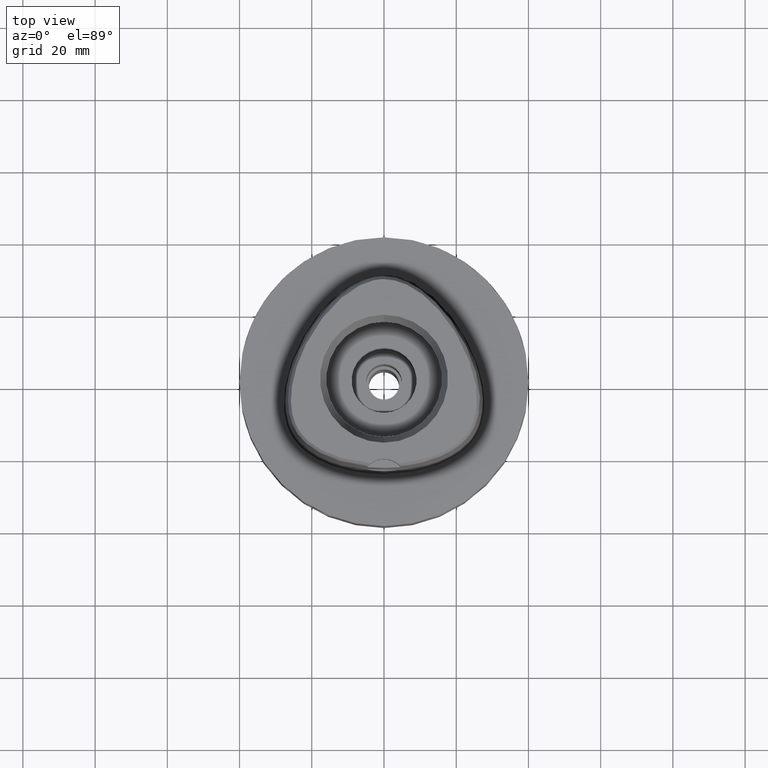
[diagram: clean part render]
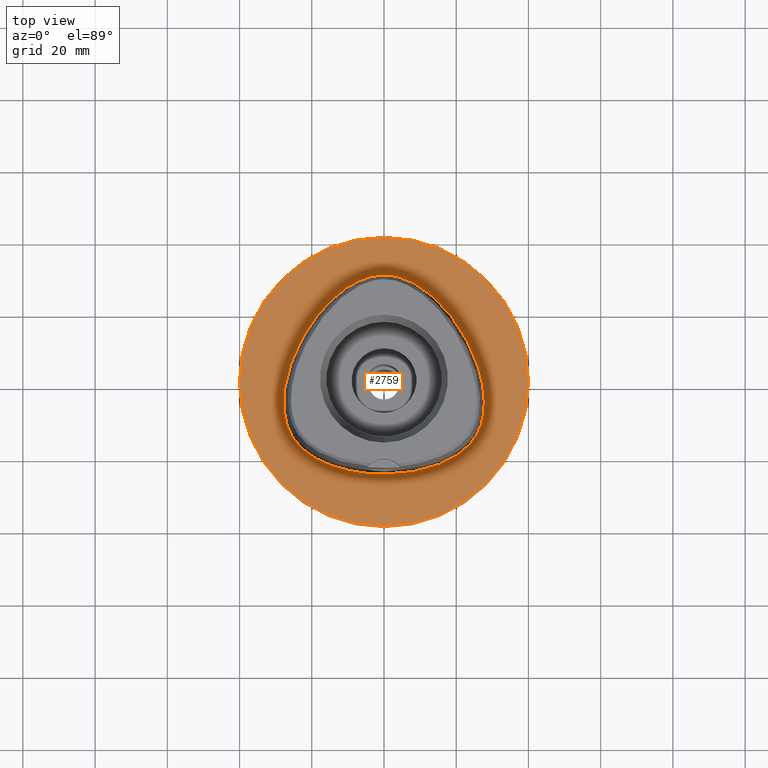
[diagram: same view with one face highlighted and labeled with its STEP entity id]
A machine part, top view. The second image highlights one B-rep face of the part: STEP entity #2759.
In plain terms, the highlighted planar face has unit normal (0, 0, -1).
Its self-contained STEP definition (entity closure, byte-faithful):
#54 = ORIENTED_EDGE ( 'NONE', *, *, #3718, .F. ) ;
#59 = DIRECTION ( 'NONE',  ( 0.0000000000000000000, 0.0000000000000000000, -1.000000000000000000 ) ) ;
#277 = AXIS2_PLACEMENT_3D ( 'NONE', #4810, #2851, #2103 ) ;
#292 = CARTESIAN_POINT ( 'NONE',  ( 11.74025984165630021, -24.13566401404884942, 2.004477007663298116E-06 ) ) ;
#332 = CARTESIAN_POINT ( 'NONE',  ( -21.42129056939050358, -19.59889645245617373, 1.596118149108094464E-06 ) ) ;
#353 = AXIS2_PLACEMENT_3D ( 'NONE', #4296, #4761, #3962 ) ;
#361 = CARTESIAN_POINT ( 'NONE',  ( -25.63812386396930876, -14.80217771438690910, 1.596118149108094464E-06 ) ) ;
#466 = CARTESIAN_POINT ( 'NONE',  ( -1.500612728353999969E-11, -25.57499999999999929, 7.690144817236999257E-14 ) ) ;
#470 = CARTESIAN_POINT ( 'NONE',  ( 0.0000000000000000000, -40.00000000000000000, 0.0000000000000000000 ) ) ;
#533 = VERTEX_POINT ( 'NONE', #466 ) ;
#637 = CARTESIAN_POINT ( 'NONE',  ( -18.55019647169920205, -21.45394527734240597, 1.596118149108094464E-06 ) ) ;
#650 = CARTESIAN_POINT ( 'NONE',  ( 27.68378748849034920, -8.751933587425231309, 2.004477007663298116E-06 ) ) ;
#815 = FACE_BOUND ( 'NONE', #4662, .T. ) ;
#931 = CIRCLE ( 'NONE', #277, 40.00000000000000000 ) ;
#960 = EDGE_CURVE ( 'NONE', #3310, #533, #4248, .T. ) ;
#976 = CARTESIAN_POINT ( 'NONE',  ( -9.304563385736750902, 26.79191402835184022, 1.596118149108094464E-06 ) ) ;
#1042 = CARTESIAN_POINT ( 'NONE',  ( 22.33885461409847650, 12.89734372483531999, 2.004477007663298116E-06 ) ) ;
#1095 = CARTESIAN_POINT ( 'NONE',  ( 15.29776364460782467, -22.96525385946577558, 2.004477007663298116E-06 ) ) ;
#1165 = CARTESIAN_POINT ( 'NONE',  ( -27.10051713518205929, -11.41106444215656701, 1.596118149108094464E-06 ) ) ;
#1406 = CARTESIAN_POINT ( 'NONE',  ( 6.691850456937086911, -25.24546870020594014, 2.004477007663298116E-06 ) ) ;
#1435 = CARTESIAN_POINT ( 'NONE',  ( 27.10051712533027413, -11.41106443934843284, 2.004477007663298116E-06 ) ) ;
#1489 = VERTEX_POINT ( 'NONE', #470 ) ;
#1490 = CARTESIAN_POINT ( 'NONE',  ( 3.650762729678999847E-11, 29.57499999998999840, 7.053616949784998820E-14 ) ) ;
#1515 = CARTESIAN_POINT ( 'NONE',  ( 21.42129056319168612, -19.59889644429075872, 2.004477007663298116E-06 ) ) ;
#1529 = CARTESIAN_POINT ( 'NONE',  ( -24.77458490272899283, -16.12173825757710333, 1.596118149108094464E-06 ) ) ;
#1741 = CARTESIAN_POINT ( 'NONE',  ( 0.0000000000000000000, 1.292614696500000017E-14, 0.0000000000000000000 ) ) ;
#1745 = CARTESIAN_POINT ( 'NONE',  ( 3.650762729678999847E-11, 29.57499999998999840, 7.053616949784998820E-14 ) ) ;
#1809 = CARTESIAN_POINT ( 'NONE',  ( 23.43253025136742806, -17.76420406655662276, 2.004477007663298116E-06 ) ) ;
#1822 = CARTESIAN_POINT ( 'NONE',  ( -27.53737507907375814, -1.765625006037526701, 1.596118149108094464E-06 ) ) ;
#1833 = CARTESIAN_POINT ( 'NONE',  ( 26.77222809419928851, 1.900468737120077911, 2.004477007663298116E-06 ) ) ;
#1860 = CARTESIAN_POINT ( 'NONE',  ( 24.77458489448825318, -16.12173825150674844, 2.004477007663298116E-06 ) ) ;
#1874 = CARTESIAN_POINT ( 'NONE',  ( -26.77222810407938880, 1.900468739743562008, 1.596118149108094464E-06 ) ) ;
#2103 = DIRECTION ( 'NONE',  ( 0.0000000000000000000, -1.000000000000000000, 0.0000000000000000000 ) ) ;
#2210 = CARTESIAN_POINT ( 'NONE',  ( -27.85475985742984406, -5.337968751003931089, 1.596118149108094464E-06 ) ) ;
#2224 = CARTESIAN_POINT ( 'NONE',  ( 9.304563380394583305, 26.79191401961349683, 2.004477007663298116E-06 ) ) ;
#2250 = CARTESIAN_POINT ( 'NONE',  ( 2.676740182783175381, -25.57499994988822323, 2.004477007663298116E-06 ) ) ;
#2483 = CARTESIAN_POINT ( 'NONE',  ( 0.0000000000000000000, 40.00000000000000000, 0.0000000000000000000 ) ) ;
#2494 = CIRCLE ( 'NONE', #3493, 40.00000000000000000 ) ;
#2544 = CARTESIAN_POINT ( 'NONE',  ( -17.75297948073896492, 19.52218747452299752, 1.596118149108094464E-06 ) ) ;
#2555 = CARTESIAN_POINT ( 'NONE',  ( 27.85475984718884845, -5.337968751260300238, 2.004477007663298116E-06 ) ) ;
#2610 = CARTESIAN_POINT ( 'NONE',  ( 17.75297947280294508, 19.52218746800233262, 2.004477007663298116E-06 ) ) ;
#2678 = CARTESIAN_POINT ( 'NONE',  ( -2.676740183357162461, -25.57499996009707033, 1.596118149108094464E-06 ) ) ;
#2759 = ADVANCED_FACE ( 'NONE', ( #3990, #815 ), #4712, .F. ) ;
#2851 = DIRECTION ( 'NONE',  ( 0.0000000000000000000, 0.0000000000000000000, -1.000000000000000000 ) ) ;
#2928 = CARTESIAN_POINT ( 'NONE',  ( -3.149084865891958351, 29.34015621077275071, 1.596118149108094464E-06 ) ) ;
#3010 = CARTESIAN_POINT ( 'NONE',  ( -6.691850458340206309, -25.24546871035241935, 1.596118149108094464E-06 ) ) ;
#3060 = CARTESIAN_POINT ( 'NONE',  ( -22.33885462298031399, 12.89734372996301204, 1.596118149108094464E-06 ) ) ;
#3079 = CARTESIAN_POINT ( 'NONE',  ( 3.650762729678999847E-11, 29.57499999998999840, 7.053616949784998820E-14 ) ) ;
#3310 = VERTEX_POINT ( 'NONE', #1490 ) ;
#3316 = CARTESIAN_POINT ( 'NONE',  ( -1.049694955182541634, 29.57499996010137977, 1.596118149108094464E-06 ) ) ;
#3381 = CARTESIAN_POINT ( 'NONE',  ( 25.63812385511575442, -14.80217770926959986, 2.004477007663298116E-06 ) ) ;
#3421 = ORIENTED_EDGE ( 'NONE', *, *, #960, .F. ) ;
#3440 = CARTESIAN_POINT ( 'NONE',  ( 25.20914245329050374, 6.827421856066281158, 2.004477007663298116E-06 ) ) ;
#3493 = AXIS2_PLACEMENT_3D ( 'NONE', #1741, #59, #3601 ) ;
#3518 = EDGE_LOOP ( 'NONE', ( #4119, #54 ) ) ;
#3570 = EDGE_CURVE ( 'NONE', #4848, #1489, #2494, .T. ) ;
#3601 = DIRECTION ( 'NONE',  ( 0.0000000000000000000, 1.000000000000000000, 0.0000000000000000000 ) ) ;
#3718 = EDGE_CURVE ( 'NONE', #1489, #4848, #931, .T. ) ;
#3766 = CARTESIAN_POINT ( 'NONE',  ( 6.262496925303080886, 28.35083003171271088, 2.004477007663298116E-06 ) ) ;
#3777 = CARTESIAN_POINT ( 'NONE',  ( -15.29776364832846625, -22.96525386899528698, 1.596118149108094464E-06 ) ) ;
#3790 = CARTESIAN_POINT ( 'NONE',  ( 1.049694954427725868, 29.57499994989050407, 2.004477007663298116E-06 ) ) ;
#3962 = DIRECTION ( 'NONE',  ( 0.0000000000000000000, -1.000000000000000000, 0.0000000000000000000 ) ) ;
#3990 = FACE_OUTER_BOUND ( 'NONE', #3518, .T. ) ;
#4119 = ORIENTED_EDGE ( 'NONE', *, *, #3570, .F. ) ;
#4133 = CARTESIAN_POINT ( 'NONE',  ( -13.21796077908749822, 24.04386715726642620, 1.596118149108094464E-06 ) ) ;
#4147 = CARTESIAN_POINT ( 'NONE',  ( 26.34912732621822684, -13.39455076109096154, 2.004477007663298116E-06 ) ) ;
#4160 = CARTESIAN_POINT ( 'NONE',  ( -27.68378749865684796, -8.751933588713834311, 1.596118149108094464E-06 ) ) ;
#4174 = CARTESIAN_POINT ( 'NONE',  ( 13.21796077234434641, 24.04386714952164184, 2.004477007663298116E-06 ) ) ;
#4246 = CARTESIAN_POINT ( 'NONE',  ( -26.34912733557951370, -13.39455076518880716, 1.596118149108094464E-06 ) ) ;
#4248 = B_SPLINE_CURVE_WITH_KNOTS ( 'NONE', 3,
 ( #1745, #3316, #2928, #4501, #976, #4133, #2544, #3060, #5082, #1874, #1822, #2210, #4160, #1165, #4246, #361, #1529, #4629, #332, #637, #3777, #4966, #3010, #2678, #4271 ),
 .UNSPECIFIED., .F., .F.,
 ( 4, 1, 1, 1, 1, 1, 1, 1, 1, 1, 1, 1, 1, 1, 1, 1, 1, 1, 1, 1, 1, 1, 4 ),
 ( 0.0000000000000000000, 0.04166666666711999617, 0.08333333333375000929, 0.1250000000004000134, 0.1666666666671000052, 0.2500000000002999823, 0.3333333333335000148, 0.4166666666668999985, 0.4583333333333999837, 0.5000000000001000311, 0.5416666666667999674, 0.5833333333333000637, 0.6250000000000000000, 0.6458333333333000637, 0.6666666666667000474, 0.6875000000000000000, 0.7083333333332000326, 0.7499999999999000799, 0.7916666666666000163, 0.8333333333332000326, 0.8749999999998000488, 0.9166666666664999852, 1.000000000000000000 ),
 .UNSPECIFIED. ) ;
#4271 = CARTESIAN_POINT ( 'NONE',  ( -1.500612728353999969E-11, -25.57499999999999929, 7.690144817236999257E-14 ) ) ;
#4296 = CARTESIAN_POINT ( 'NONE',  ( 0.0000000000000000000, 1.224646799146999965E-14, 0.0000000000000000000 ) ) ;
#4417 = ORIENTED_EDGE ( 'NONE', *, *, #4958, .F. ) ;
#4501 = CARTESIAN_POINT ( 'NONE',  ( -6.262496929273408952, 28.35083004116465943, 1.596118149108094464E-06 ) ) ;
#4565 = CARTESIAN_POINT ( 'NONE',  ( 27.53737506894885811, -1.765625007582026784, 2.004477007663298116E-06 ) ) ;
#4589 = CARTESIAN_POINT ( 'NONE',  ( 3.149084863686563374, 29.34015620074707087, 2.004477007663298116E-06 ) ) ;
#4617 = CARTESIAN_POINT ( 'NONE',  ( -1.500612728353999969E-11, -25.57499999999999929, 7.690144817236999257E-14 ) ) ;
#4629 = CARTESIAN_POINT ( 'NONE',  ( -23.43253025872709117, -17.76420407368483723, 1.596118149108094464E-06 ) ) ;
#4662 = EDGE_LOOP ( 'NONE', ( #3421, #4417 ) ) ;
#4712 = PLANE ( 'NONE',  #353 ) ;
#4761 = DIRECTION ( 'NONE',  ( 0.0000000000000000000, 0.0000000000000000000, -1.000000000000000000 ) ) ;
#4784 = B_SPLINE_CURVE_WITH_KNOTS ( 'NONE', 3,
 ( #4617, #2250, #1406, #292, #1095, #4980, #1515, #1809, #1860, #3381, #4147, #1435, #650, #2555, #4565, #1833, #3440, #1042, #2610, #4174, #2224, #3766, #4589, #3790, #3079 ),
 .UNSPECIFIED., .F., .F.,
 ( 4, 1, 1, 1, 1, 1, 1, 1, 1, 1, 1, 1, 1, 1, 1, 1, 1, 1, 1, 1, 1, 1, 4 ),
 ( 0.0000000000000000000, 0.08333333333344000726, 0.1250000000001000033, 0.1666666666668000230, 0.2083333333333000081, 0.2500000000000000000, 0.2916666666666999919, 0.3125000000000000000, 0.3333333333333000081, 0.3541666666666000163, 0.3749999999998999689, 0.4166666666666000163, 0.4583333333332000326, 0.4999999999998999689, 0.5416666666664999852, 0.5833333333331000015, 0.6666666666664999852, 0.7499999999997000177, 0.8333333333329999704, 0.8749999999995999866, 0.9166666666663000340, 0.9583333333329000503, 1.000000000000000000 ),
 .UNSPECIFIED. ) ;
#4810 = CARTESIAN_POINT ( 'NONE',  ( 0.0000000000000000000, 1.292614696500000017E-14, 0.0000000000000000000 ) ) ;
#4848 = VERTEX_POINT ( 'NONE', #2483 ) ;
#4958 = EDGE_CURVE ( 'NONE', #533, #3310, #4784, .T. ) ;
#4966 = CARTESIAN_POINT ( 'NONE',  ( -11.74025984432359948, -24.13566402391572652, 1.596118149108094464E-06 ) ) ;
#4980 = CARTESIAN_POINT ( 'NONE',  ( 18.55019646679571466, -21.45394526835110582, 2.004477007663298116E-06 ) ) ;
#5082 = CARTESIAN_POINT ( 'NONE',  ( -25.20914246278426063, 6.827421859924037939, 1.596118149108094464E-06 ) ) ;